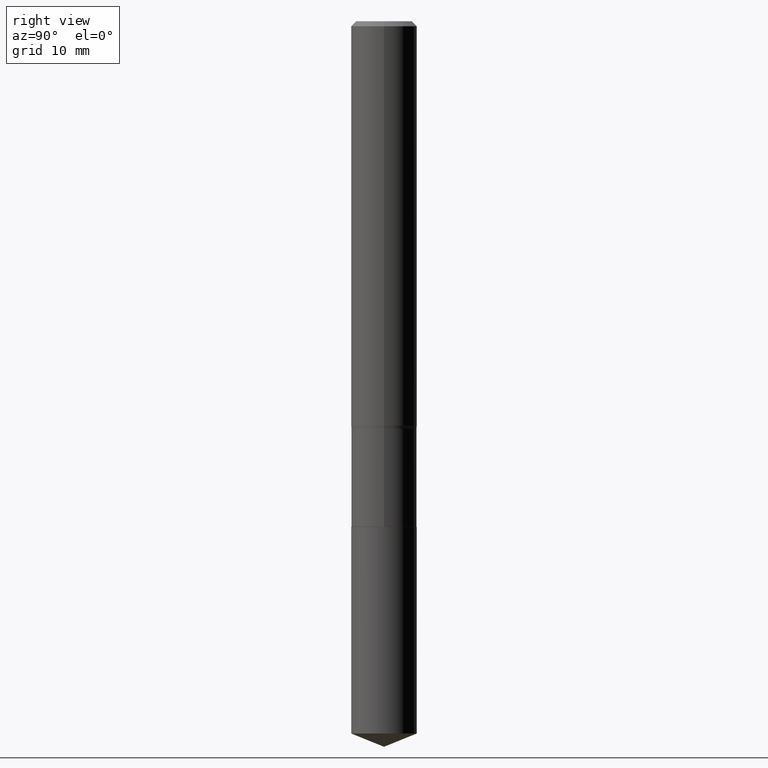
[diagram: clean part render]
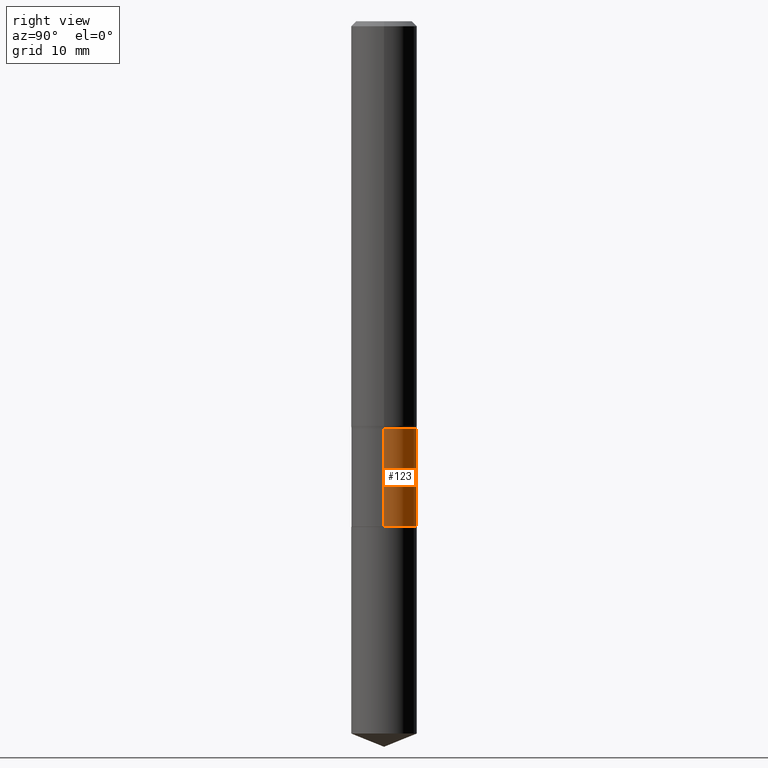
[diagram: same view with one face highlighted and labeled with its STEP entity id]
A machine part, right view. The second image highlights one B-rep face of the part: STEP entity #123.
In plain terms, the highlighted cylindrical surface (edge-blend (fillet) strip) has radius 2.9769 mm, axis along (-0, 0, 1).
Its self-contained STEP definition (entity closure, byte-faithful):
#21 = ORIENTED_EDGE ( 'NONE', *, *, #270, .T. ) ;
#28 = VECTOR ( 'NONE', #88, 39.37007874015748143 ) ;
#32 = VERTEX_POINT ( 'NONE', #315 ) ;
#34 = CYLINDRICAL_SURFACE ( 'NONE', #129, 0.1171999999999999709 ) ;
#38 = EDGE_CURVE ( 'NONE', #53, #32, #422, .T. ) ;
#50 = LINE ( 'NONE', #236, #201 ) ;
#53 = VERTEX_POINT ( 'NONE', #54 ) ;
#54 = CARTESIAN_POINT ( 'NONE',  ( 0.1171999999999999847, -7.139730189800343763E-15, -1.810499999999999998 ) ) ;
#79 = ORIENTED_EDGE ( 'NONE', *, *, #175, .T. ) ;
#87 = CARTESIAN_POINT ( 'NONE',  ( -0.1171999999999999431, -4.878085365567953422E-15, -1.460799999999999876 ) ) ;
#88 = DIRECTION ( 'NONE',  ( -2.445468806185136877E-29, 3.491481338843145188E-15, 1.000000000000000000 ) ) ;
#120 = CIRCLE ( 'NONE', #218, 0.1171999999999999431 ) ;
#123 = ADVANCED_FACE ( 'NONE', ( #145 ), #34, .T. ) ;
#129 = AXIS2_PLACEMENT_3D ( 'NONE', #191, #483, #303 ) ;
#145 = FACE_OUTER_BOUND ( 'NONE', #399, .T. ) ;
#147 = VERTEX_POINT ( 'NONE', #372 ) ;
#159 = CIRCLE ( 'NONE', #468, 0.1171999999999999847 ) ;
#162 = CARTESIAN_POINT ( 'NONE',  ( 4.427521273598189436E-29, -6.321326963975514491E-15, -1.810499999999999998 ) ) ;
#175 = EDGE_CURVE ( 'NONE', #53, #147, #159, .T. ) ;
#191 = CARTESIAN_POINT ( 'NONE',  ( 0.000000000000000000, 0.000000000000000000, 0.000000000000000000 ) ) ;
#200 = DIRECTION ( 'NONE',  ( -2.445468806185136597E-29, 3.491481338843145583E-15, 1.000000000000000000 ) ) ;
#201 = VECTOR ( 'NONE', #203, 39.37007874015748143 ) ;
#203 = DIRECTION ( 'NONE',  ( -2.445468806185136877E-29, 3.491481338843145188E-15, 1.000000000000000000 ) ) ;
#218 = AXIS2_PLACEMENT_3D ( 'NONE', #347, #235, #317 ) ;
#226 = EDGE_CURVE ( 'NONE', #32, #341, #120, .T. ) ;
#228 = ORIENTED_EDGE ( 'NONE', *, *, #226, .F. ) ;
#235 = DIRECTION ( 'NONE',  ( -2.445468806185136597E-29, 3.491481338843145583E-15, 1.000000000000000000 ) ) ;
#236 = CARTESIAN_POINT ( 'NONE',  ( -0.1171999999999999709, 8.327560863108372108E-16, -5.764991925778747720E-30 ) ) ;
#270 = EDGE_CURVE ( 'NONE', #147, #341, #50, .T. ) ;
#282 = DIRECTION ( 'NONE',  ( 1.000000000000000000, -6.982962677686262766E-15, 0.000000000000000000 ) ) ;
#296 = CARTESIAN_POINT ( 'NONE',  ( 0.1171999999999999709, -8.184032258248302581E-16, 5.714879181232835073E-30 ) ) ;
#303 = DIRECTION ( 'NONE',  ( 1.000000000000000000, -6.982962677686266711E-15, 4.876176775795935793E-29 ) ) ;
#309 = ORIENTED_EDGE ( 'NONE', *, *, #38, .F. ) ;
#315 = CARTESIAN_POINT ( 'NONE',  ( 0.1171999999999999431, -5.918759165606896047E-15, -1.460799999999999876 ) ) ;
#317 = DIRECTION ( 'NONE',  ( 1.000000000000000000, -6.982962677686265133E-15, 0.000000000000000000 ) ) ;
#341 = VERTEX_POINT ( 'NONE', #87 ) ;
#347 = CARTESIAN_POINT ( 'NONE',  ( 3.572340832075246748E-29, -5.100355939782065986E-15, -1.460799999999999876 ) ) ;
#372 = CARTESIAN_POINT ( 'NONE',  ( -0.1171999999999999986, -4.878085365567953422E-15, -1.810499999999999998 ) ) ;
#399 = EDGE_LOOP ( 'NONE', ( #79, #21, #228, #309 ) ) ;
#422 = LINE ( 'NONE', #296, #28 ) ;
#468 = AXIS2_PLACEMENT_3D ( 'NONE', #162, #200, #282 ) ;
#483 = DIRECTION ( 'NONE',  ( -2.445468806185136597E-29, 3.491481338843145583E-15, 1.000000000000000000 ) ) ;